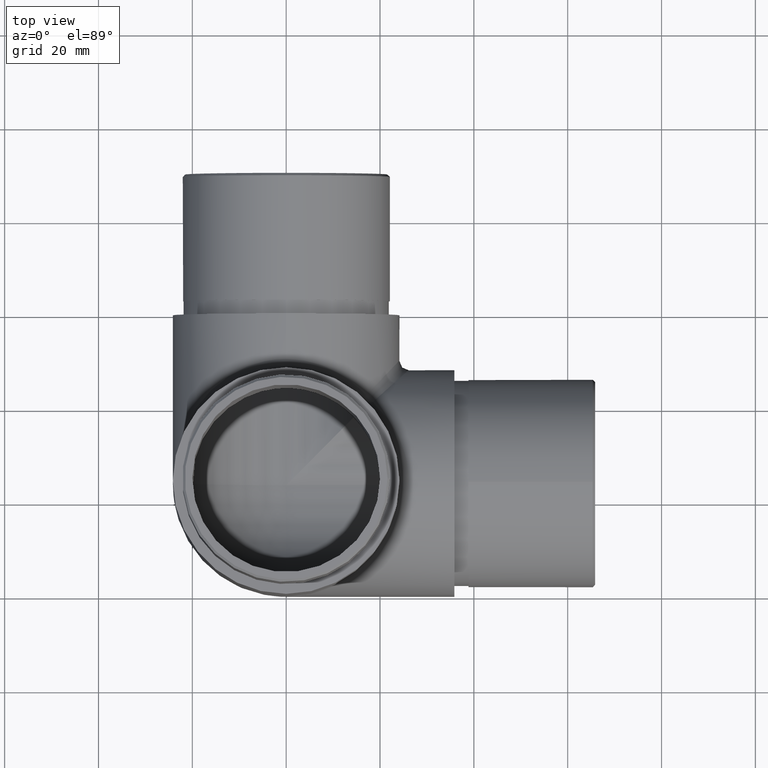
[diagram: clean part render]
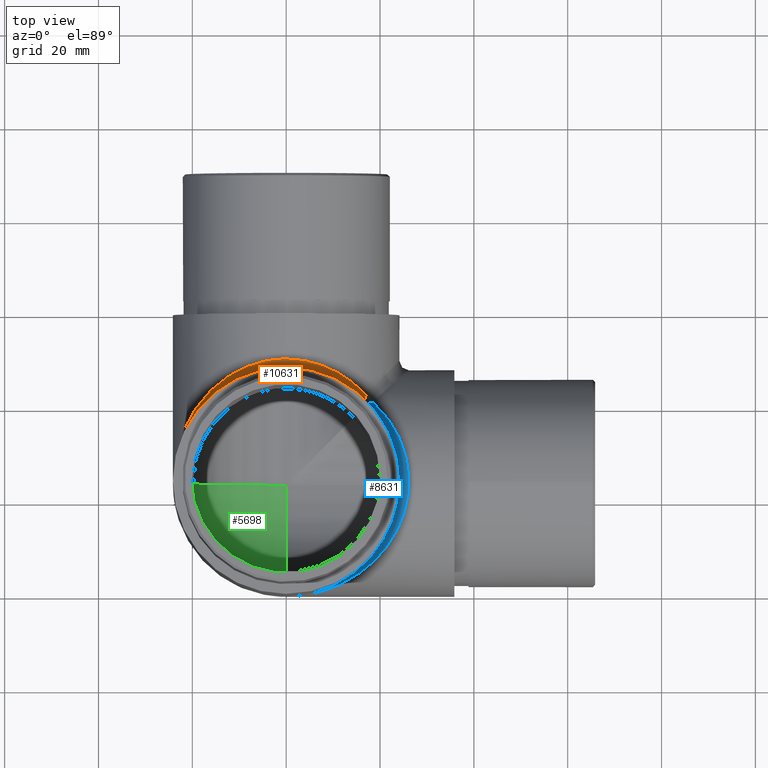
[diagram: same view with three faces highlighted in distinct colors, each labeled with its STEP entity id]
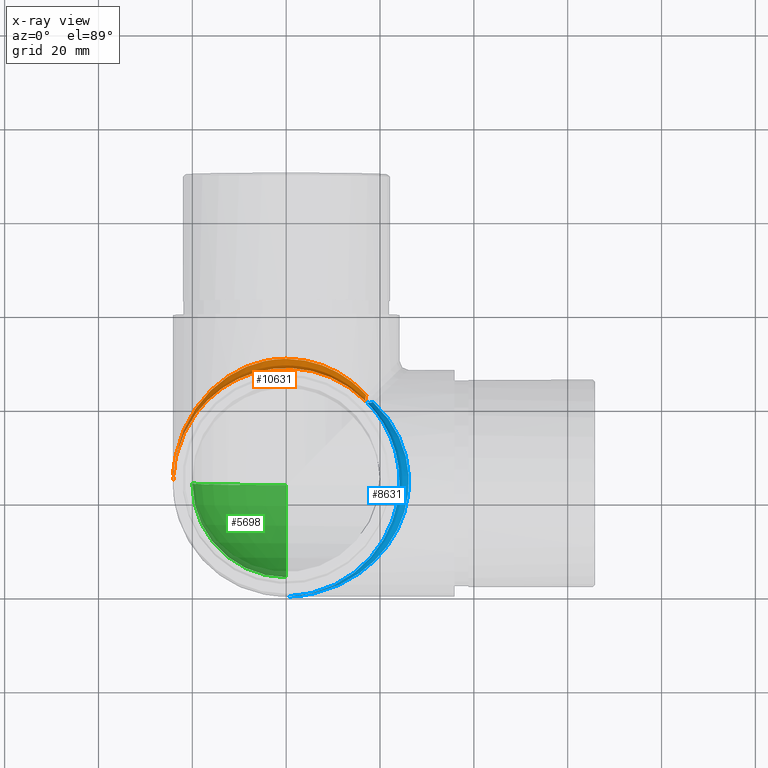
[diagram: x-ray of the same camera — body ghosted, the three highlighted faces saturated]
A machine part, top view with three faces highlighted in distinct colors.
The next image is the same camera in x-ray (body ghosted, the three faces saturated) — at least one of them is partly hidden behind the body in this view.
Their STEP definitions:

[orange] entity #10631 — the highlighted face is a freeform B-spline surface patch.
#103 = ORIENTED_EDGE ( 'NONE', *, *, #11047, .F. ) ;
#377 = CARTESIAN_POINT ( 'NONE',  ( -24.14999999999999900, 24.14999999999999900, 24.14999999999997000 ) ) ;
#468 = CARTESIAN_POINT ( 'NONE',  ( -21.14264392982307000, 36.07065434867061500, 36.07065434867060100 ) ) ;
#508 = CARTESIAN_POINT ( 'NONE',  ( -10.77594245127391100, 45.80629145820604700, 45.80629145821112800 ) ) ;
#560 = CARTESIAN_POINT ( 'NONE',  ( -19.42138465272022100, 39.74546519161641800, 38.55269538728469300 ) ) ;
#610 = CARTESIAN_POINT ( 'NONE',  ( -7.587437525065166000, 47.11367769947018800, 47.11367769947015900 ) ) ;
#654 = CARTESIAN_POINT ( 'NONE',  ( 2.172103743026547700, 48.22721033233497000, 48.22721033233047900 ) ) ;
#698 = CARTESIAN_POINT ( 'NONE',  ( 12.42971388738253900, 46.60713965442580800, 44.88957639214188300 ) ) ;
#707 = CARTESIAN_POINT ( 'NONE',  ( -0.7969907250942667200, 59.10024825640454100, 61.99467875382930500 ) ) ;
#745 = CARTESIAN_POINT ( 'NONE',  ( 16.23836326533722000, 43.54852940185362800, 42.06489426597300300 ) ) ;
#1079 = VERTEX_POINT ( 'NONE', #2081 ) ;
#1384 = CARTESIAN_POINT ( 'NONE',  ( -24.14999999999999900, 26.61911852885888800, 26.61911852888405500 ) ) ;
#1465 = CARTESIAN_POINT ( 'NONE',  ( -13.43238453275357200, 45.91968281220550800, 44.25469751107791400 ) ) ;
#1514 = CARTESIAN_POINT ( 'NONE',  ( -19.42138465271665000, 38.55269538729005100, 39.74546519161639700 ) ) ;
#1560 = CARTESIAN_POINT ( 'NONE',  ( -23.75812410503825900, 29.12085893002679500, 29.12085893002676700 ) ) ;
#1655 = CARTESIAN_POINT ( 'NONE',  ( 8.661034220155697100, 46.72968288890411500, 46.72968288890871200 ) ) ;
#1701 = CARTESIAN_POINT ( 'NONE',  ( 11.80905445856735600, 45.25856899942500200, 45.25856899942981900 ) ) ;
#1743 = CARTESIAN_POINT ( 'NONE',  ( 17.07662876565510900, 42.64084232802824200, 41.22662876565511400 ) ) ;
#1868 = EDGE_CURVE ( 'NONE', #1079, #10857, #9778, .T. ) ;
#1956 = CARTESIAN_POINT ( 'NONE',  ( 16.23836326534839000, 42.06489426596186100, 43.54852940187513600 ) ) ;
#1964 = EDGE_CURVE ( 'NONE', #1079, #6308, #4802, .T. ) ;
#2081 = CARTESIAN_POINT ( 'NONE',  ( 17.07662876565511900, 41.22662876565512100, 42.64084232802818500 ) ) ;
#2375 = CARTESIAN_POINT ( 'NONE',  ( -23.79835105971212500, 28.89154529982156600, 29.28421985881384500 ) ) ;
#2420 = CARTESIAN_POINT ( 'NONE',  ( -13.81732922173284600, 44.00671868539826900, 44.00671868540898400 ) ) ;
#2481 = CARTESIAN_POINT ( 'NONE',  ( 17.07662876565510900, 42.64084232802822800, 41.22662876565511400 ) ) ;
#2604 = CARTESIAN_POINT ( 'NONE',  ( 2.369016748685437000, 50.20551618959341800, 48.21274248484594700 ) ) ;
#2653 = CARTESIAN_POINT ( 'NONE',  ( -3.546865975933539300, 48.06751571539845000, 50.04826235849507300 ) ) ;
#2700 = CARTESIAN_POINT ( 'NONE',  ( 12.82602168668478100, 44.66059651523063000, 44.66059651523589500 ) ) ;
#2717 = FACE_OUTER_BOUND ( 'NONE', #5523, .T. ) ;
#2743 = CARTESIAN_POINT ( 'NONE',  ( -6.509835618058800400, 47.43775739547989200, 47.43775739546627100 ) ) ;
#2753 = CARTESIAN_POINT ( 'NONE',  ( 17.07662876565511900, 41.22662876565512100, 42.64084232802818500 ) ) ;
#3318 = CARTESIAN_POINT ( 'NONE',  ( -24.15000000000001300, 24.14999999999999900, 24.14999999999998800 ) ) ;
#3649 = CARTESIAN_POINT ( 'NONE',  ( 9.252053118941789800, 46.48891960977331900, 48.33893365613312200 ) ) ;
#3699 = CARTESIAN_POINT ( 'NONE',  ( 15.33830888702516600, 44.38921639818521900, 42.84128397767115400 ) ) ;
#3748 = CARTESIAN_POINT ( 'NONE',  ( 10.33874850131117300, 46.00722067588470300, 47.81734247098817300 ) ) ;
#3759 = CARTESIAN_POINT ( 'NONE',  ( -24.15000000000001300, 24.14999999999999900, 24.14999999999998800 ) ) ;
#4218 = ORIENTED_EDGE ( 'NONE', *, *, #1868, .T. ) ;
#4396 = CARTESIAN_POINT ( 'NONE',  ( -18.69007619278964700, 40.76015578023972800, 39.48978057716358600 ) ) ;
#4433 = CARTESIAN_POINT ( 'NONE',  ( -14.40422456788980200, 45.17855285683301500, 43.57025053508721900 ) ) ;
#4481 = CARTESIAN_POINT ( 'NONE',  ( -13.43238453275357200, 44.25469751107793600, 45.91968281220548700 ) ) ;
#4574 = CARTESIAN_POINT ( 'NONE',  ( -17.09786316185484600, 42.66237755825937900, 41.24651694194739800 ) ) ;
#4619 = CARTESIAN_POINT ( 'NONE',  ( 3.252878510892224000, 48.10746952814927400, 48.10746952815383500 ) ) ;
#4670 = CARTESIAN_POINT ( 'NONE',  ( -4.338833892315166800, 47.93651028027835500, 47.93651028029222500 ) ) ;
#4713 = CARTESIAN_POINT ( 'NONE',  ( 5.427173062553336500, 47.71187989109555600, 47.71187989109104400 ) ) ;
#4802 =( BOUNDED_CURVE ( )  B_SPLINE_CURVE ( 3, ( #2753, #707, #8713, #3759 ),
 .UNSPECIFIED., .F., .F. ) 
 B_SPLINE_CURVE_WITH_KNOTS ( ( 4, 4 ),
 ( 5.497787143782138000, 7.853981633974482800 ),
 .UNSPECIFIED. ) 
 CURVE ( )  GEOMETRIC_REPRESENTATION_ITEM ( )  RATIONAL_B_SPLINE_CURVE ( ( 1.000000000000000000, 0.5884556215767264800, 0.5884556215767264800, 1.000000000000000000 ) ) 
 REPRESENTATION_ITEM ( '' )  );
#4899 =( BOUNDED_CURVE ( )  B_SPLINE_CURVE ( 3, ( #10533, #5464, #11491, #2481 ),
 .UNSPECIFIED., .F., .F. ) 
 B_SPLINE_CURVE_WITH_KNOTS ( ( 4, 4 ),
 ( 4.712388980384689700, 7.068583470577033600 ),
 .UNSPECIFIED. ) 
 CURVE ( )  GEOMETRIC_REPRESENTATION_ITEM ( )  RATIONAL_B_SPLINE_CURVE ( ( 1.000000000000000000, 0.5884556215767268200, 0.5884556215767268200, 1.000000000000000000 ) ) 
 REPRESENTATION_ITEM ( '' )  );
#4986 = CARTESIAN_POINT ( 'NONE',  ( 5.874113341019895400, 47.60469267981219600, 49.54711029304564800 ) ) ;
#5119 = ORIENTED_EDGE ( 'NONE', *, *, #1964, .F. ) ;
#5464 = CARTESIAN_POINT ( 'NONE',  ( -24.15000000000000200, 51.52045795731832800, 49.42711509251384400 ) ) ;
#5484 = CARTESIAN_POINT ( 'NONE',  ( -11.39877801177901000, 47.23952349080873600, 45.47359435193521200 ) ) ;
#5523 = EDGE_LOOP ( 'NONE', ( #5119, #4218, #103 ) ) ;
#5527 = CARTESIAN_POINT ( 'NONE',  ( -22.27257932513845500, 33.82184450437725300, 33.82184450437723200 ) ) ;
#5577 = CARTESIAN_POINT ( 'NONE',  ( 7.019726799902467300, 47.28765873856657700, 49.20382095293882000 ) ) ;
#5629 = CARTESIAN_POINT ( 'NONE',  ( 0.0009519213291003716200, 48.32907804986386700, 50.33148616994154200 ) ) ;
#5663 = CARTESIAN_POINT ( 'NONE',  ( 17.07662876565510900, 42.64084232802822800, 41.22662876565511400 ) ) ;
#5671 = CARTESIAN_POINT ( 'NONE',  ( 10.33874850131322300, 47.81734247099312500, 46.00722067588358800 ) ) ;
#5722 = CARTESIAN_POINT ( 'NONE',  ( -3.257269782987319000, 48.10552470080403300, 48.10552470079510100 ) ) ;
#5764 = AXIS2_PLACEMENT_3D ( 'NONE', #6692, #10758, #9704 ) ;
#5767 = CARTESIAN_POINT ( 'NONE',  ( 9.252053118939258500, 48.33893365612844000, 46.48891960977420000 ) ) ;
#6308 = VERTEX_POINT ( 'NONE', #3318 ) ;
#6370 = CARTESIAN_POINT ( 'NONE',  ( -24.14999999999999900, 24.14999999999999900, 24.14999999999997400 ) ) ;
#6412 = CARTESIAN_POINT ( 'NONE',  ( -18.28677137147387200, 39.98099068661407800, 39.98099068662494900 ) ) ;
#6542 = CARTESIAN_POINT ( 'NONE',  ( -24.14999999999999900, 26.71741727154608300, 26.52105648595712100 ) ) ;
#6633 = CARTESIAN_POINT ( 'NONE',  ( -7.017904936115018100, 47.28821139490376200, 49.20441937791346700 ) ) ;
#6680 = CARTESIAN_POINT ( 'NONE',  ( -3.546865975933975800, 50.04826235849956400, 48.06751571539838600 ) ) ;
#6692 = CARTESIAN_POINT ( 'NONE',  ( 18.49084232802820400, 42.64084232802823500, 42.64084232802821400 ) ) ;
#6728 = CARTESIAN_POINT ( 'NONE',  ( 13.43396751995942400, 45.91853749825246900, 44.25363979284389900 ) ) ;
#6938 = CARTESIAN_POINT ( 'NONE',  ( -1.187361901983711200, 50.29989884645633700, 48.29990658286868700 ) ) ;
#7415 = CARTESIAN_POINT ( 'NONE',  ( -21.39720410588619600, 35.59567260768992700, 36.54355439715479300 ) ) ;
#7460 = CARTESIAN_POINT ( 'NONE',  ( -14.40422456788980200, 43.57025053508723300, 45.17855285683299400 ) ) ;
#7502 = CARTESIAN_POINT ( 'NONE',  ( -10.33702744801257700, 47.81822388038654000, 46.00803467347154200 ) ) ;
#7593 = CARTESIAN_POINT ( 'NONE',  ( 13.43396751996190400, 44.25363979284208700, 45.91853749825762800 ) ) ;
#7638 = CARTESIAN_POINT ( 'NONE',  ( -10.33702744801190900, 46.00803467347184700, 47.81822388038174400 ) ) ;
#7681 = CARTESIAN_POINT ( 'NONE',  ( 12.42971388738458700, 44.88957639214081000, 46.60713965443070400 ) ) ;
#7730 = CARTESIAN_POINT ( 'NONE',  ( 15.71377564086198800, 42.54242940187101100, 42.54242940184327200 ) ) ;
#7969 = CARTESIAN_POINT ( 'NONE',  ( -8.146582335221447500, 48.80067566995368400, 46.91534674682349500 ) ) ;
#8378 = CARTESIAN_POINT ( 'NONE',  ( -17.09786316185484600, 41.24651694194741900, 42.66237755825935800 ) ) ;
#8421 = CARTESIAN_POINT ( 'NONE',  ( -16.61184996216658000, 41.73503669347963600, 41.73503669346833100 ) ) ;
#8511 = CARTESIAN_POINT ( 'NONE',  ( -11.39877801177901000, 45.47359435193523300, 47.23952349080872200 ) ) ;
#8559 = CARTESIAN_POINT ( 'NONE',  ( -19.06560585097359700, 39.03623708123773600, 39.03623708123772200 ) ) ;
#8607 = CARTESIAN_POINT ( 'NONE',  ( 14.77780387184334600, 43.29941245453604600, 43.29941245453090900 ) ) ;
#8649 = CARTESIAN_POINT ( 'NONE',  ( -9.724163154876405800, 46.29417338762880300, 46.29417338762878100 ) ) ;
#8703 = CARTESIAN_POINT ( 'NONE',  ( -4.718037753212592600, 49.82821516416116500, 47.86429813439270500 ) ) ;
#8713 = CARTESIAN_POINT ( 'NONE',  ( -24.14999999999999900, 49.42711509251390100, 51.52045795731832800 ) ) ;
#8751 = CARTESIAN_POINT ( 'NONE',  ( 17.07662876565510900, 41.22662876565514300, 42.64084232802821400 ) ) ;
#8926 =( BOUNDED_SURFACE ( )  B_SPLINE_SURFACE ( 3, 2, ( 
 ( #6370, #10383, #377 ),
 ( #6542, #1384, #9473 ),
 ( #11519, #1560, #2375 ),
 ( #12433, #5527, #9391 ),
 ( #12474, #468, #7415 ),
 ( #560, #8559, #1514 ),
 ( #4396, #6412, #9555 ),
 ( #4574, #8421, #8378 ),
 ( #10428, #11566, #12347 ),
 ( #4433, #2420, #7460 ),
 ( #1465, #10470, #4481 ),
 ( #5484, #508, #8511 ),
 ( #7502, #8649, #7638 ),
 ( #7969, #610, #10651 ),
 ( #10969, #2743, #6633 ),
 ( #8703, #4670, #11749 ),
 ( #6680, #5722, #2653 ),
 ( #6938, #12612, #9650 ),
 ( #10749, #8972, #5629 ),
 ( #2604, #654, #9738 ),
 ( #9691, #4619, #11665 ),
 ( #12702, #4713, #4986 ),
 ( #11613, #10703, #5577 ),
 ( #5767, #1655, #3649 ),
 ( #5671, #12661, #3748 ),
 ( #698, #1701, #7681 ),
 ( #6728, #2700, #7593 ),
 ( #3699, #8607, #11711 ),
 ( #745, #7730, #1956 ),
 ( #1743, #12563, #8751 ) ),
 .UNSPECIFIED., .F., .F., .F. ) 
 B_SPLINE_SURFACE_WITH_KNOTS ( ( 4, 2, 2, 2, 2, 2, 2, 2, 2, 2, 2, 2, 2, 2, 4 ),
 ( 3, 3 ),
 ( 4.712388980384689700, 5.006913291658732700, 5.301437602932775700, 5.448699758569796700, 5.595961914206818700, 5.743224069843840600, 5.890486225480861600, 6.037748381117882700, 6.185010536754904600, 6.332272692391926600, 6.479534848028947600, 6.626797003665969600, 6.774059159302991500, 6.921321314940012600, 7.068583470577034500 ),
 ( 0.0000000000000000000, 1.000000000000000000 ),
 .UNSPECIFIED. ) 
 GEOMETRIC_REPRESENTATION_ITEM ( )  RATIONAL_B_SPLINE_SURFACE ( (
 ( 1.000000000000000000, 1.000000000000000000, 1.000000000000000000),
 ( 1.000000000000000000, 1.000049692710023100, 1.000000000000000000),
 ( 1.000000000000000000, 0.9926394134281642000, 1.000000000000000000),
 ( 1.000000000000000000, 0.9647745980427209200, 1.000000000000000000),
 ( 1.000000000000000000, 0.9442614555026989100, 1.000000000000000000),
 ( 1.000000000000000000, 0.9072747350134474600, 1.000000000000000000),
 ( 1.000000000000000000, 0.8939364460816735500, 1.000000000000000000),
 ( 1.000000000000000000, 0.8661820557043737900, 1.000000000000000000),
 ( 1.000000000000000000, 0.8517664595878787800, 1.000000000000000000),
 ( 1.000000000000000000, 0.8230199978400135600, 1.000000000000000000),
 ( 1.000000000000000000, 0.8086913583507406900, 1.000000000000000000),
 ( 1.000000000000000000, 0.7814668926337350300, 1.000000000000000000),
 ( 1.000000000000000000, 0.7685763963457924500, 1.000000000000000000),
 ( 1.000000000000000000, 0.7456538433514140500, 1.000000000000000000),
 ( 1.000000000000000000, 0.7356308174578026800, 1.000000000000000000),
 ( 1.000000000000000000, 0.7197312459654693400, 1.000000000000000000),
 ( 1.000000000000000000, 0.7138650231699945600, 1.000000000000000000),
 ( 1.000000000000000000, 0.7071257296488835400, 1.000000000000000000),
 ( 1.000000000000000000, 0.7062584530658103700, 1.000000000000000000),
 ( 1.000000000000000000, 0.7096565420266928200, 1.000000000000000000),
 ( 1.000000000000000000, 0.7139188639465502400, 1.000000000000000000),
 ( 1.000000000000000000, 0.7269560325967657800, 1.000000000000000000),
 ( 1.000000000000000000, 0.7357213436762770600, 1.000000000000000000),
 ( 1.000000000000000000, 0.7565887938746507200, 1.000000000000000000),
 ( 1.000000000000000000, 0.7686809988073996000, 1.000000000000000000),
 ( 1.000000000000000000, 0.7947862272579251400, 1.000000000000000000),
 ( 1.000000000000000000, 0.8087926538522003400, 1.000000000000000000),
 ( 1.000000000000000000, 0.8373286426340403900, 1.000000000000000000),
 ( 1.000000000000000000, 0.8518581657838779600, 1.000000000000000000),
 ( 1.000000000000000000, 0.8660254037844382600, 1.000000000000000000) ) ) 
 REPRESENTATION_ITEM ( '' )  SURFACE ( )  );
#8972 = CARTESIAN_POINT ( 'NONE',  ( -0.002682265283580420900, 48.32443938769542800, 48.32443938769986900 ) ) ;
#9391 = CARTESIAN_POINT ( 'NONE',  ( -22.42186715615352500, 33.42920461156907700, 34.19766876159459900 ) ) ;
#9473 = CARTESIAN_POINT ( 'NONE',  ( -24.14999999999999500, 26.52105648596054600, 26.71741727154292100 ) ) ;
#9555 = CARTESIAN_POINT ( 'NONE',  ( -18.69007619278965000, 39.48978057716360700, 40.76015578023970700 ) ) ;
#9650 = CARTESIAN_POINT ( 'NONE',  ( -1.187361901984148100, 48.29990658286866500, 50.29989884646079200 ) ) ;
#9691 = CARTESIAN_POINT ( 'NONE',  ( 3.548749212357799300, 50.04795987203876700, 48.06723636366407200 ) ) ;
#9704 = DIRECTION ( 'NONE',  ( 0.7071067811865501300, 3.469446951953613400E-015, 0.7071067811865449100 ) ) ;
#9738 = CARTESIAN_POINT ( 'NONE',  ( 2.369016748685217600, 48.21274248484597500, 50.20551618958893400 ) ) ;
#9778 = CIRCLE ( 'NONE', #5764, 2.000000000000000400 ) ;
#10383 = CARTESIAN_POINT ( 'NONE',  ( -24.14999999999999900, 24.14999999999999900, 24.14999999999997000 ) ) ;
#10428 = CARTESIAN_POINT ( 'NONE',  ( -16.23697105721419100, 43.54989385403819600, 42.06615436233300200 ) ) ;
#10470 = CARTESIAN_POINT ( 'NONE',  ( -12.82353647310831200, 44.65887581969155900, 44.65887581968662100 ) ) ;
#10533 = CARTESIAN_POINT ( 'NONE',  ( -24.15000000000001300, 24.14999999999999900, 24.14999999999998800 ) ) ;
#10631 = ADVANCED_FACE ( 'NONE', ( #2717 ), #8926, .F. ) ;
#10651 = CARTESIAN_POINT ( 'NONE',  ( -8.146582335222118900, 46.91534674682324600, 48.80067566995842300 ) ) ;
#10703 = CARTESIAN_POINT ( 'NONE',  ( 6.507781045018592000, 47.44071166865011000, 47.44071166864531400 ) ) ;
#10749 = CARTESIAN_POINT ( 'NONE',  ( 0.0009519213288813627900, 50.33148616993711500, 48.32907804986384500 ) ) ;
#10758 = DIRECTION ( 'NONE',  ( 0.5773502691896261800, -0.5773502691896256200, -0.5773502691896256200 ) ) ;
#10857 = VERTEX_POINT ( 'NONE', #5663 ) ;
#10969 = CARTESIAN_POINT ( 'NONE',  ( -7.017904936115017200, 49.20441937791348900, 47.28821139490374000 ) ) ;
#11047 = EDGE_CURVE ( 'NONE', #6308, #10857, #4899, .T. ) ;
#11491 = CARTESIAN_POINT ( 'NONE',  ( -0.7969907250942910300, 61.99467875382931900, 59.10024825640449100 ) ) ;
#11519 = CARTESIAN_POINT ( 'NONE',  ( -23.79835105971212200, 29.28421985881387000, 28.89154529982153700 ) ) ;
#11566 = CARTESIAN_POINT ( 'NONE',  ( -15.71019083621257600, 42.54213119073732900, 42.54213119072693400 ) ) ;
#11613 = CARTESIAN_POINT ( 'NONE',  ( 7.019726799904999500, 49.20382095294354500, 47.28765873856565300 ) ) ;
#11665 = CARTESIAN_POINT ( 'NONE',  ( 3.548749212358990800, 48.06723636366385900, 50.04795987204327200 ) ) ;
#11711 = CARTESIAN_POINT ( 'NONE',  ( 15.33830888702268600, 42.84128397767302200, 44.38921639818000400 ) ) ;
#11749 = CARTESIAN_POINT ( 'NONE',  ( -4.718037753212593400, 47.86429813439272600, 49.82821516416114300 ) ) ;
#12347 = CARTESIAN_POINT ( 'NONE',  ( -16.23697105721419500, 42.06615436233302300, 43.54989385403817400 ) ) ;
#12433 = CARTESIAN_POINT ( 'NONE',  ( -22.42186715615352800, 34.19766876159462800, 33.42920461156905500 ) ) ;
#12474 = CARTESIAN_POINT ( 'NONE',  ( -21.39720410587905500, 36.54355439715481400, 35.59567260770059200 ) ) ;
#12563 = CARTESIAN_POINT ( 'NONE',  ( 16.60522424486407500, 41.69803328644616900, 41.69803328644616200 ) ) ;
#12612 = CARTESIAN_POINT ( 'NONE',  ( -1.082034906636149400, 48.30070372736526700, 48.30070372737422000 ) ) ;
#12661 = CARTESIAN_POINT ( 'NONE',  ( 9.724667404680966200, 46.29694580952534000, 46.29694580952031700 ) ) ;
#12702 = CARTESIAN_POINT ( 'NONE',  ( 5.874113341021085500, 49.54711029305021700, 47.60469267981192600 ) ) ;

[blue] entity #8631 — the highlighted face is a freeform B-spline surface patch.
#110 = DIRECTION ( 'NONE',  ( 0.5773502691896248400, -0.5773502691896234000, 0.5773502691896291700 ) ) ;
#282 = CARTESIAN_POINT ( 'NONE',  ( 17.54803328644614900, 40.75522424486412400, 41.69803328644611900 ) ) ;
#354 = CARTESIAN_POINT ( 'NONE',  ( 20.73957639214082200, 36.57971388738459200, 46.60713965443076000 ) ) ;
#448 = CARTESIAN_POINT ( 'NONE',  ( 20.51059651522844600, 36.97602168668414900, 44.66059651524163600 ) ) ;
#486 = CARTESIAN_POINT ( 'NONE',  ( 15.83099068662197300, 5.863228628527890500, 39.98099068663015000 ) ) ;
#535 = CARTESIAN_POINT ( 'NONE',  ( 12.39355439714623400, 2.752795894109842900, 35.59567260768401600 ) ) ;
#585 = CARTESIAN_POINT ( 'NONE',  ( 16.61015578024523600, 5.459923807212768500, 39.48978057716626500 ) ) ;
#631 = CARTESIAN_POINT ( 'NONE',  ( 23.95552470080409800, 20.89273021701687900, 48.10552470079517900 ) ) ;
#675 = CARTESIAN_POINT ( 'NONE',  ( 24.15070372736532500, 23.06796509336078300, 48.30070372737429800 ) ) ;
#952 = VERTEX_POINT ( 'NONE', #11235 ) ;
#1079 = VERTEX_POINT ( 'NONE', #2081 ) ;
#1322 = CARTESIAN_POINT ( 'NONE',  ( 23.66734247099070700, 34.48874850131206000, 46.00722067588421300 ) ) ;
#1365 = CARTESIAN_POINT ( 'NONE',  ( 24.18893365613550000, 33.40205311893566900, 46.48891960977550000 ) ) ;
#1490 = CARTESIAN_POINT ( 'NONE',  ( 23.28775739548465800, 17.64016438193587900, 47.43775739547556500 ) ) ;
#1544 = CARTESIAN_POINT ( 'NONE',  ( 23.08952349081624100, 12.75122198822316300, 45.47359435193652600 ) ) ;
#1584 = CARTESIAN_POINT ( 'NONE',  ( 19.39989385403549000, 7.913028942785723900, 42.06615436233295200 ) ) ;
#1632 = CARTESIAN_POINT ( 'NONE',  ( 5.152240399215533400E-014, -9.107298248878237200E-015, 24.15000000000003800 ) ) ;
#1676 = CARTESIAN_POINT ( 'NONE',  ( 18.39213119073264500, 8.439809163785478000, 42.54213119073263300 ) ) ;
#2081 = CARTESIAN_POINT ( 'NONE',  ( 17.07662876565511900, 41.22662876565512100, 42.64084232802818500 ) ) ;
#2317 = CARTESIAN_POINT ( 'NONE',  ( 22.14694580953056000, 33.87466740469183400, 46.29694580952052300 ) ) ;
#2356 = CARTESIAN_POINT ( 'NONE',  ( 20.23921639818524900, 39.48830888702514100, 42.84128397767120300 ) ) ;
#2443 = CARTESIAN_POINT ( 'NONE',  ( 19.42025053508823300, 9.745775432111393900, 45.17855285683293700 ) ) ;
#2486 = CARTESIAN_POINT ( 'NONE',  ( 21.76968281219798800, 10.71761546724418700, 44.25469751107657900 ) ) ;
#2533 = CARTESIAN_POINT ( 'NONE',  ( 19.85671868540418900, 10.33267077827052900, 44.00671868540415900 ) ) ;
#2581 = CARTESIAN_POINT ( 'NONE',  ( 14.40269538728981900, 4.728615347283186700, 39.74546519162230900 ) ) ;
#2632 = CARTESIAN_POINT ( 'NONE',  ( 4.758187596216257100E-014, -8.673617379884035500E-015, 24.15000000000003800 ) ) ;
#3121 = ORIENTED_EDGE ( 'NONE', *, *, #6148, .F. ) ;
#3280 = CARTESIAN_POINT ( 'NONE',  ( 18.69128397767305600, 39.48830888702265400, 44.38921639818523300 ) ) ;
#3407 = CARTESIAN_POINT ( 'NONE',  ( 22.57968288891833500, 32.81103422015299000, 46.72968288891369300 ) ) ;
#3446 = CARTESIAN_POINT ( 'NONE',  ( 24.14990658286877700, 22.96263809801682100, 50.29989884646527500 ) ) ;
#3489 = CARTESIAN_POINT ( 'NONE',  ( 21.02855285683558900, 9.745775432110100700, 43.57025053508716200 ) ) ;
#3539 = CARTESIAN_POINT ( 'NONE',  ( 22.76534674682354600, 16.00341766477859900, 48.80067566995369100 ) ) ;
#3587 = CARTESIAN_POINT ( 'NONE',  ( 2.567417271545276300, -5.646923423664072000E-015, 26.52105648596010200 ) ) ;
#4248 = CARTESIAN_POINT ( 'NONE',  ( 18.49084232802820400, 41.22662876565514300, 41.22662876565509300 ) ) ;
#4292 = CARTESIAN_POINT ( 'NONE',  ( 18.39242940185567900, 39.86377564086155400, 42.54242940186120600 ) ) ;
#4376 = CARTESIAN_POINT ( 'NONE',  ( 23.29071166863615300, 30.65778104501936200, 47.44071166864090100 ) ) ;
#4413 = CARTESIAN_POINT ( 'NONE',  ( 25.39711029304792700, 30.02411334102011900, 47.60469267981213200 ) ) ;
#4459 = CARTESIAN_POINT ( 'NONE',  ( 17.09651694194469900, 7.052136838142677000, 42.66237755825379500 ) ) ;
#4505 = CARTESIAN_POINT ( 'NONE',  ( 24.06274248484589500, 26.51901674868698300, 50.20551618958894800 ) ) ;
#4550 = CARTESIAN_POINT ( 'NONE',  ( 24.17443938769548600, 24.14731773471127600, 48.32443938769992500 ) ) ;
#4595 = CARTESIAN_POINT ( 'NONE',  ( 2.469118528862587900, 1.337492163720253300E-011, 26.61911852887765300 ) ) ;
#4642 = CARTESIAN_POINT ( 'NONE',  ( 26.14989884646304900, 22.96263809801525800, 48.29990658286860100 ) ) ;
#5053 =( BOUNDED_CURVE ( )  B_SPLINE_CURVE ( 3, ( #5192, #9349, #11304, #8379 ),
 .UNSPECIFIED., .F., .F. ) 
 B_SPLINE_CURVE_WITH_KNOTS ( ( 4, 4 ),
 ( 4.712388980385773300, 7.068583470577034500 ),
 .UNSPECIFIED. ) 
 CURVE ( )  GEOMETRIC_REPRESENTATION_ITEM ( )  RATIONAL_B_SPLINE_CURVE ( ( 1.000000000000000000, 0.5884556215770602200, 0.5884556215770602200, 1.000000000000000000 ) ) 
 REPRESENTATION_ITEM ( '' )  );
#5192 = CARTESIAN_POINT ( 'NONE',  ( 5.684341886080801500E-011, 3.469446951953614200E-015, 24.14999999999999100 ) ) ;
#5302 = CARTESIAN_POINT ( 'NONE',  ( 21.76853749825250600, 37.58396751995940100, 44.25363979284394800 ) ) ;
#5426 = CARTESIAN_POINT ( 'NONE',  ( 23.56187989109114500, 29.57717306255459600, 47.71187989109112900 ) ) ;
#5467 = CARTESIAN_POINT ( 'NONE',  ( 25.89826235849285800, 20.60313402406690000, 48.06751571539847800 ) ) ;
#5499 = CARTESIAN_POINT ( 'NONE',  ( 18.49084232802821100, 41.22662876565513600, 41.22662876565511400 ) ) ;
#5503 =( BOUNDED_CURVE ( )  B_SPLINE_CURVE ( 3, ( #5831, #6707, #11864, #5697 ),
 .UNSPECIFIED., .F., .F. ) 
 B_SPLINE_CURVE_WITH_KNOTS ( ( 4, 4 ),
 ( 5.497787143782137100, 7.853981633973309500 ),
 .UNSPECIFIED. ) 
 CURVE ( )  GEOMETRIC_REPRESENTATION_ITEM ( )  RATIONAL_B_SPLINE_CURVE ( ( 1.000000000000000000, 0.5884556215770875300, 0.5884556215770875300, 1.000000000000000000 ) ) 
 REPRESENTATION_ITEM ( '' )  );
#5506 = CARTESIAN_POINT ( 'NONE',  ( 22.14417338762368500, 14.42583684512717700, 46.29417338763776300 ) ) ;
#5554 = CARTESIAN_POINT ( 'NONE',  ( 9.671844504372940000, 1.877420674869462400, 33.82184450437761600 ) ) ;
#5604 = CARTESIAN_POINT ( 'NONE',  ( 24.07721033233501400, 26.32210374302922800, 48.22721033233055700 ) ) ;
#5649 = CARTESIAN_POINT ( 'NONE',  ( 15.33978057716627500, 5.459923807212765800, 40.76015578024522100 ) ) ;
#5697 = CARTESIAN_POINT ( 'NONE',  ( 5.684341886080801500E-011, 3.469446951953614200E-015, 24.14999999999999100 ) ) ;
#5831 = CARTESIAN_POINT ( 'NONE',  ( 18.49084232802821100, 41.22662876565513600, 41.22662876565511400 ) ) ;
#6148 = EDGE_CURVE ( 'NONE', #1079, #10178, #8236, .T. ) ;
#6171 = FACE_OUTER_BOUND ( 'NONE', #11891, .T. ) ;
#6263 = CARTESIAN_POINT ( 'NONE',  ( 17.07662876565511200, 41.22662876565514300, 42.64084232802818500 ) ) ;
#6347 = CARTESIAN_POINT ( 'NONE',  ( 21.10856899942033800, 35.95905445855608200, 45.25856899943001100 ) ) ;
#6431 = CARTESIAN_POINT ( 'NONE',  ( 25.89795987204101400, 27.69874921235901500, 48.06723636366385200 ) ) ;
#6474 = CARTESIAN_POINT ( 'NONE',  ( 23.71429813439231900, 19.43196224678573700, 49.82821516415656800 ) ) ;
#6520 = CARTESIAN_POINT ( 'NONE',  ( 25.05441937792265300, 17.13209506388547600, 47.28821139490386800 ) ) ;
#6563 = CARTESIAN_POINT ( 'NONE',  ( 17.91615436233190600, 7.913028942784428000, 43.54989385403811000 ) ) ;
#6610 = CARTESIAN_POINT ( 'NONE',  ( 20.10469751107604700, 10.71761546724326500, 45.91968281220047700 ) ) ;
#6657 = CARTESIAN_POINT ( 'NONE',  ( 23.95746952815395400, 27.40287851089005900, 48.10746952815394200 ) ) ;
#6707 = CARTESIAN_POINT ( 'NONE',  ( 37.84467875381275800, 23.35300927492106700, 59.10024825638920000 ) ) ;
#7264 = CARTESIAN_POINT ( 'NONE',  ( 19.39852940186192500, 40.38836326534173800, 42.06489426596850500 ) ) ;
#7352 = CARTESIAN_POINT ( 'NONE',  ( 21.85722067588477600, 34.48874850131104400, 47.81734247098823000 ) ) ;
#7483 = CARTESIAN_POINT ( 'NONE',  ( 11.44567260769070800, 2.752795894114298900, 36.54355439714332500 ) ) ;
#7524 = CARTESIAN_POINT ( 'NONE',  ( 23.91751571539834500, 20.60313402406533700, 50.04826235849061100 ) ) ;
#7567 = CARTESIAN_POINT ( 'NONE',  ( 18.51237755825381000, 7.052136838142676100, 41.24651694194468400 ) ) ;
#7616 = CARTESIAN_POINT ( 'NONE',  ( 14.88623708124204400, 5.084394149024849000, 39.03623708124349200 ) ) ;
#7661 = CARTESIAN_POINT ( 'NONE',  ( 22.96367769947458400, 16.56256247492881800, 47.11367769946003400 ) ) ;
#7820 = ORIENTED_EDGE ( 'NONE', *, *, #8643, .F. ) ;
#8236 = CIRCLE ( 'NONE', #10093, 2.000000000000000400 ) ;
#8379 = CARTESIAN_POINT ( 'NONE',  ( 17.07662876565511900, 41.22662876565512100, 42.64084232802818500 ) ) ;
#8401 = CARTESIAN_POINT ( 'NONE',  ( 20.10363979284212000, 37.58396751996187400, 45.91853749825249100 ) ) ;
#8485 = CARTESIAN_POINT ( 'NONE',  ( 24.65067566995609400, 16.00341766477691200, 46.91534674682282700 ) ) ;
#8537 = CARTESIAN_POINT ( 'NONE',  ( 21.65629145820972600, 13.37405754873701000, 45.80629145821737300 ) ) ;
#8587 = CARTESIAN_POINT ( 'NONE',  ( 4.970858930031695900, 0.3918758949542399100, 29.12085893002711900 ) ) ;
#8626 = CARTESIAN_POINT ( 'NONE',  ( 4.955213997715895600E-014, -8.890457814381136400E-015, 24.15000000000003800 ) ) ;
#8631 = ADVANCED_FACE ( 'NONE', ( #6171 ), #10973, .F. ) ;
#8643 = EDGE_CURVE ( 'NONE', #10178, #952, #5503, .T. ) ;
#9067 = CARTESIAN_POINT ( 'NONE',  ( 18.49084232802820400, 42.64084232802823500, 42.64084232802820700 ) ) ;
#9283 = CARTESIAN_POINT ( 'NONE',  ( 17.91489426596439600, 40.38836326534585900, 43.54852940186653100 ) ) ;
#9349 = CARTESIAN_POINT ( 'NONE',  ( 25.27711509252005200, 2.738507419695041600E-011, 51.52045795732500000 ) ) ;
#9371 = CARTESIAN_POINT ( 'NONE',  ( 22.33891960977525000, 33.40205311893640800, 48.33893365613783300 ) ) ;
#9410 = CARTESIAN_POINT ( 'NONE',  ( 23.13765873856467100, 31.16972679990781400, 49.20382095293413700 ) ) ;
#9448 = CARTESIAN_POINT ( 'NONE',  ( 23.91723636366413400, 27.69874921235770400, 50.04795987204326500 ) ) ;
#9497 = CARTESIAN_POINT ( 'NONE',  ( 23.66822388038417900, 13.81297255198914100, 46.00803467347226000 ) ) ;
#9536 = CARTESIAN_POINT ( 'NONE',  ( 11.92065434866149500, 3.007356070179275000, 36.07065434865865000 ) ) ;
#9578 = CARTESIAN_POINT ( 'NONE',  ( 4.741545299820184100, 0.3516489402874545300, 29.28421985881373500 ) ) ;
#9690 = ORIENTED_EDGE ( 'NONE', *, *, #11484, .F. ) ;
#10093 = AXIS2_PLACEMENT_3D ( 'NONE', #9067, #110, #12074 ) ;
#10178 = VERTEX_POINT ( 'NONE', #5499 ) ;
#10362 = CARTESIAN_POINT ( 'NONE',  ( 25.05382095293650500, 31.16972679990856000, 47.28765873856438900 ) ) ;
#10451 = CARTESIAN_POINT ( 'NONE',  ( 17.58503669347088700, 7.538150037831016400, 41.73503669346241900 ) ) ;
#10493 = CARTESIAN_POINT ( 'NONE',  ( 26.05551618959341900, 26.51901674868709300, 48.21274248484587600 ) ) ;
#10540 = CARTESIAN_POINT ( 'NONE',  ( 10.04766876159450500, 1.728132843847225000, 33.42920461157162700 ) ) ;
#10587 = CARTESIAN_POINT ( 'NONE',  ( 24.17907804986395000, 24.15095192132730500, 50.33148616994155600 ) ) ;
#10632 = CARTESIAN_POINT ( 'NONE',  ( 25.67821516415199700, 19.43196224678682100, 47.86429813439256300 ) ) ;
#10973 =( BOUNDED_SURFACE ( )  B_SPLINE_SURFACE ( 3, 2, ( 
 ( #4248, #282, #6263 ),
 ( #7264, #4292, #9283 ),
 ( #2356, #12327, #3280 ),
 ( #5302, #448, #8401 ),
 ( #11368, #6347, #354 ),
 ( #1322, #2317, #7352 ),
 ( #1365, #3407, #9371 ),
 ( #10362, #4376, #9410 ),
 ( #4413, #5426, #12412 ),
 ( #6431, #6657, #9448 ),
 ( #10493, #5604, #4505 ),
 ( #11447, #4550, #10587 ),
 ( #4642, #675, #3446 ),
 ( #5467, #631, #7524 ),
 ( #10632, #12457, #6474 ),
 ( #6520, #1490, #11496 ),
 ( #8485, #7661, #3539 ),
 ( #9497, #5506, #11639 ),
 ( #1544, #8537, #12638 ),
 ( #2486, #12590, #6610 ),
 ( #3489, #2533, #2443 ),
 ( #1584, #1676, #6563 ),
 ( #7567, #10451, #4459 ),
 ( #585, #486, #5649 ),
 ( #12496, #7616, #2581 ),
 ( #535, #9536, #7483 ),
 ( #10540, #5554, #11546 ),
 ( #12538, #8587, #9578 ),
 ( #3587, #4595, #11588 ),
 ( #1632, #8626, #2632 ) ),
 .UNSPECIFIED., .F., .F., .F. ) 
 B_SPLINE_SURFACE_WITH_KNOTS ( ( 4, 2, 2, 2, 2, 2, 2, 2, 2, 2, 2, 2, 2, 2, 4 ),
 ( 3, 3 ),
 ( 5.497787143782137100, 5.645049299419158100, 5.792311455056180100, 5.939573610693202000, 6.086835766330223100, 6.234097921967245000, 6.381360077604266900, 6.528622233241288000, 6.675884388878309900, 6.823146544515331900, 6.970408700152352900, 7.117670855789374900, 7.264933011426396800, 7.559457322700439800, 7.853981633974482800 ),
 ( 0.0000000000000000000, 1.000000000000000000 ),
 .UNSPECIFIED. ) 
 GEOMETRIC_REPRESENTATION_ITEM ( )  RATIONAL_B_SPLINE_SURFACE ( (
 ( 1.000000000000000000, 0.8660254037844402600, 1.000000000000000000),
 ( 1.000000000000000000, 0.8518581657835032600, 1.000000000000000000),
 ( 1.000000000000000000, 0.8373286426345369900, 1.000000000000000000),
 ( 1.000000000000000000, 0.8087926538517017400, 1.000000000000000000),
 ( 1.000000000000000000, 0.7947862272581601700, 1.000000000000000000),
 ( 1.000000000000000000, 0.7686809988071617900, 1.000000000000000000),
 ( 1.000000000000000000, 0.7565887938753266300, 1.000000000000000000),
 ( 1.000000000000000000, 0.7357213436755996000, 1.000000000000000000),
 ( 1.000000000000000000, 0.7269560325971293800, 1.000000000000000000),
 ( 1.000000000000000000, 0.7139188639461878600, 1.000000000000000000),
 ( 1.000000000000000000, 0.7096565420274769700, 1.000000000000000000),
 ( 1.000000000000000000, 0.7062584530650248800, 1.000000000000000000),
 ( 1.000000000000000000, 0.7071257296484547700, 1.000000000000000000),
 ( 1.000000000000000000, 0.7138650231704248800, 1.000000000000000000),
 ( 1.000000000000000000, 0.7197312459648096400, 1.000000000000000000),
 ( 1.000000000000000000, 0.7356308174584629300, 1.000000000000000000),
 ( 1.000000000000000000, 0.7456538433522524900, 1.000000000000000000),
 ( 1.000000000000000000, 0.7685763963449524500, 1.000000000000000000),
 ( 1.000000000000000000, 0.7814668926322120300, 1.000000000000000000),
 ( 1.000000000000000000, 0.8086913583522622500, 1.000000000000000000),
 ( 1.000000000000000000, 0.8230199978393397700, 1.000000000000000000),
 ( 1.000000000000000000, 0.8517664595885551200, 1.000000000000000000),
 ( 1.000000000000000000, 0.8661820557046401300, 1.000000000000000000),
 ( 1.000000000000000000, 0.8939364460814079900, 1.000000000000000000),
 ( 1.000000000000000000, 0.9072747350136318700, 1.000000000000000000),
 ( 1.000000000000000000, 0.9442614555023274300, 1.000000000000000000),
 ( 1.000000000000000000, 0.9647745980425245200, 1.000000000000000000),
 ( 1.000000000000000000, 0.9926394134283621500, 1.000000000000000000),
 ( 1.000000000000000000, 1.000049692709874300, 1.000000000000000000),
 ( 1.000000000000000000, 1.000000000000000000, 1.000000000000000000) ) ) 
 REPRESENTATION_ITEM ( '' )  SURFACE ( )  );
#11235 = CARTESIAN_POINT ( 'NONE',  ( 5.684341886080801500E-011, 3.469446951953614200E-015, 24.14999999999999100 ) ) ;
#11304 = CARTESIAN_POINT ( 'NONE',  ( 34.95024825639038100, 23.35300927491987400, 61.99467875381399300 ) ) ;
#11368 = CARTESIAN_POINT ( 'NONE',  ( 22.45713965442831400, 36.57971388738356900, 44.88957639214135000 ) ) ;
#11447 = CARTESIAN_POINT ( 'NONE',  ( 26.18148616993711600, 24.15095192132719500, 48.32907804986394500 ) ) ;
#11484 = EDGE_CURVE ( 'NONE', #952, #1079, #5053, .T. ) ;
#11496 = CARTESIAN_POINT ( 'NONE',  ( 23.13821139490416100, 17.13209506388656000, 49.20441937791805000 ) ) ;
#11546 = CARTESIAN_POINT ( 'NONE',  ( 9.279204611570232700, 1.728132843846800000, 34.19766876159449300 ) ) ;
#11588 = CARTESIAN_POINT ( 'NONE',  ( 2.371056485960219000, -1.276956791926016700E-015, 26.71741727154417100 ) ) ;
#11639 = CARTESIAN_POINT ( 'NONE',  ( 21.85803467347158200, 13.81297255198745500, 47.81822388038654700 ) ) ;
#11864 = CARTESIAN_POINT ( 'NONE',  ( 27.37045795732559800, 2.965877470644679800E-011, 49.42711509252058000 ) ) ;
#11891 = EDGE_LOOP ( 'NONE', ( #3121, #9690, #7820 ) ) ;
#12074 = DIRECTION ( 'NONE',  ( 0.7071067811865501300, 0.0000000000000000000, -0.7071067811865449100 ) ) ;
#12327 = CARTESIAN_POINT ( 'NONE',  ( 19.14941245453900400, 38.92780387184275500, 43.29941245452626900 ) ) ;
#12412 = CARTESIAN_POINT ( 'NONE',  ( 23.45469267981189200, 30.02411334102143300, 49.54711029304564100 ) ) ;
#12457 = CARTESIAN_POINT ( 'NONE',  ( 23.78651028027394800, 19.81116610769216600, 47.93651028028320100 ) ) ;
#12496 = CARTESIAN_POINT ( 'NONE',  ( 15.59546519162087100, 4.728615347285416000, 38.55269538729314100 ) ) ;
#12538 = CARTESIAN_POINT ( 'NONE',  ( 5.134219858813748900, 0.3516489402870306400, 28.89154529981875900 ) ) ;
#12590 = CARTESIAN_POINT ( 'NONE',  ( 20.50887581969015700, 11.32646352688493600, 44.65887581968276300 ) ) ;
#12638 = CARTESIAN_POINT ( 'NONE',  ( 21.32359435193709600, 12.75122198822408700, 47.23952349081372400 ) ) ;

[green] entity #5698 — the highlighted spherical surface has radius 20 mm.
#5 = DIRECTION ( 'NONE',  ( 0.0000000000000000000, 0.0000000000000000000, 1.000000000000000000 ) ) ;
#696 = DIRECTION ( 'NONE',  ( -0.0000000000000000000, 1.000000000000000000, 0.0000000000000000000 ) ) ;
#906 = AXIS2_PLACEMENT_3D ( 'NONE', #9602, #696, #2601 ) ;
#1034 = DIRECTION ( 'NONE',  ( 1.000000000000000000, 0.0000000000000000000, 0.0000000000000000000 ) ) ;
#1115 = CARTESIAN_POINT ( 'NONE',  ( 0.0000000000000000000, 24.14999999999999900, 24.15000000000000200 ) ) ;
#1239 = AXIS2_PLACEMENT_3D ( 'NONE', #1115, #1034, #8111 ) ;
#1856 = VERTEX_POINT ( 'NONE', #12485 ) ;
#2425 = EDGE_CURVE ( 'NONE', #1856, #12627, #8999, .T. ) ;
#2601 = DIRECTION ( 'NONE',  ( 1.000000000000000000, 0.0000000000000000000, 0.0000000000000000000 ) ) ;
#2729 = CIRCLE ( 'NONE', #12343, 20.00000000000000400 ) ;
#3437 = EDGE_CURVE ( 'NONE', #10465, #1856, #8330, .T. ) ;
#5019 = DIRECTION ( 'NONE',  ( 0.0000000000000000000, 0.0000000000000000000, 1.000000000000000000 ) ) ;
#5679 = AXIS2_PLACEMENT_3D ( 'NONE', #11005, #5019, #12008 ) ;
#5698 = ADVANCED_FACE ( 'NONE', ( #8484 ), #6133, .F. ) ;
#6133 = SPHERICAL_SURFACE ( 'NONE', #906, 19.99999999999999600 ) ;
#6860 = CARTESIAN_POINT ( 'NONE',  ( 0.0000000000000000000, 24.15000000000000600, 24.14999999999999100 ) ) ;
#7112 = CARTESIAN_POINT ( 'NONE',  ( -19.99999999999999600, 24.15000000000000600, 24.14999999999999900 ) ) ;
#7640 = ORIENTED_EDGE ( 'NONE', *, *, #9466, .T. ) ;
#8111 = DIRECTION ( 'NONE',  ( 0.0000000000000000000, 0.0000000000000000000, -1.000000000000000000 ) ) ;
#8330 = CIRCLE ( 'NONE', #5679, 20.00000000000000000 ) ;
#8484 = FACE_OUTER_BOUND ( 'NONE', #11848, .T. ) ;
#8940 = ORIENTED_EDGE ( 'NONE', *, *, #3437, .T. ) ;
#8999 = CIRCLE ( 'NONE', #1239, 20.00000000000000400 ) ;
#9466 = EDGE_CURVE ( 'NONE', #12627, #10465, #2729, .T. ) ;
#9602 = CARTESIAN_POINT ( 'NONE',  ( 0.0000000000000000000, 24.15000000000000600, 24.14999999999999100 ) ) ;
#9834 = CARTESIAN_POINT ( 'NONE',  ( 0.0000000000000000000, 24.15000000000000600, 4.149999999999997700 ) ) ;
#9871 = DIRECTION ( 'NONE',  ( 0.0000000000000000000, 1.000000000000000000, 0.0000000000000000000 ) ) ;
#10465 = VERTEX_POINT ( 'NONE', #7112 ) ;
#11005 = CARTESIAN_POINT ( 'NONE',  ( 0.0000000000000000000, 24.15000000000000200, 24.15000000000000600 ) ) ;
#11848 = EDGE_LOOP ( 'NONE', ( #7640, #8940, #12916 ) ) ;
#12008 = DIRECTION ( 'NONE',  ( 1.000000000000000000, 0.0000000000000000000, 0.0000000000000000000 ) ) ;
#12343 = AXIS2_PLACEMENT_3D ( 'NONE', #6860, #9871, #5 ) ;
#12485 = CARTESIAN_POINT ( 'NONE',  ( 4.248847104521530300E-031, 4.150000000000007500, 24.14999999999999900 ) ) ;
#12627 = VERTEX_POINT ( 'NONE', #9834 ) ;
#12916 = ORIENTED_EDGE ( 'NONE', *, *, #2425, .T. ) ;